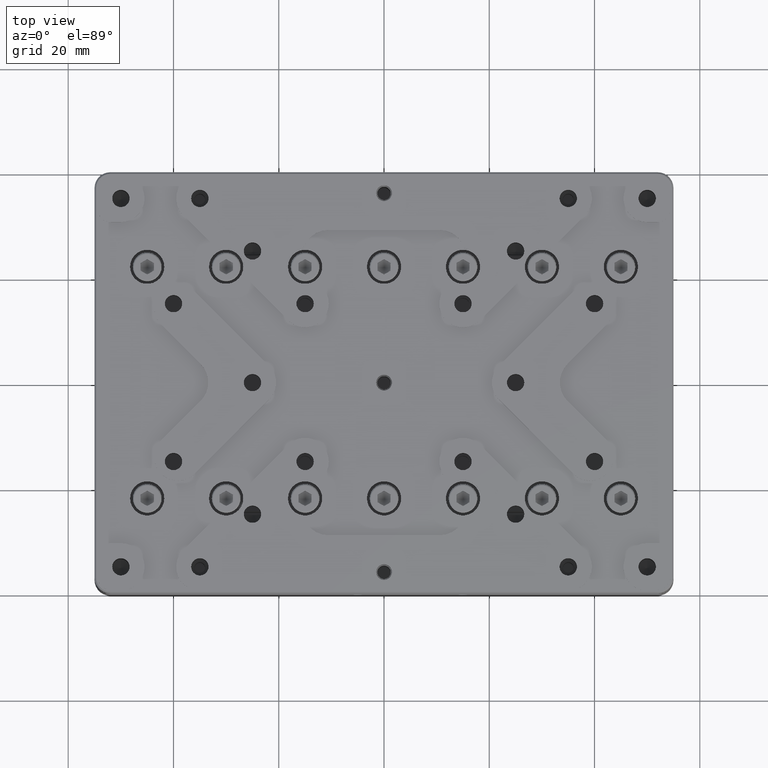
[diagram: clean part render]
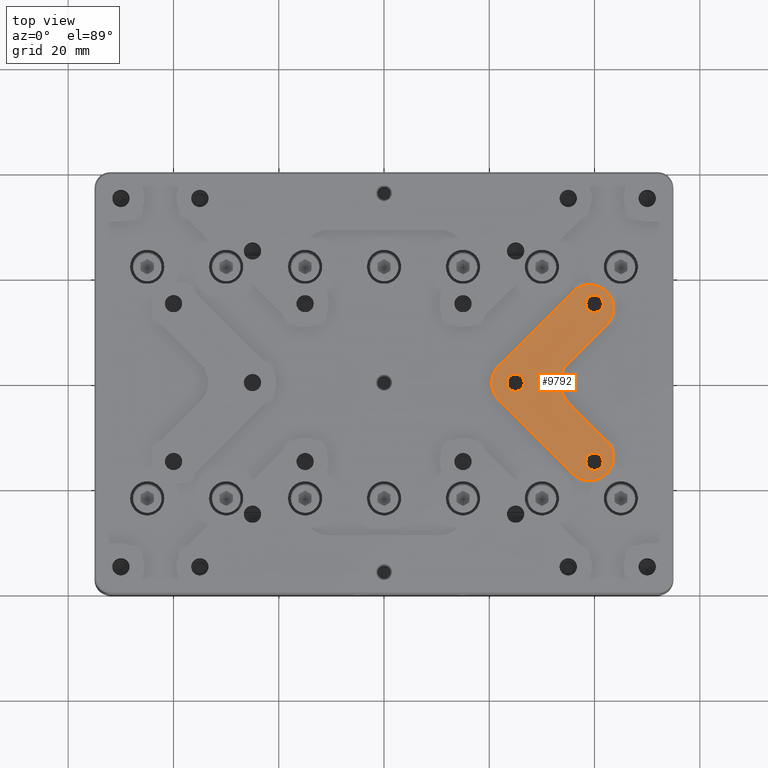
[diagram: same view with one face highlighted and labeled with its STEP entity id]
A machine part, top view. The second image highlights one B-rep face of the part: STEP entity #9792.
In plain terms, the highlighted planar face has unit normal (0, 0, 1).
Its self-contained STEP definition (entity closure, byte-faithful):
#35 = EDGE_CURVE ( 'NONE', #23738, #1265, #7230, .T. ) ;
#52 = CARTESIAN_POINT ( 'NONE',  ( 35.96015510839049512, 17.32411613906949910, 13.50000000000000000 ) ) ;
#178 = DIRECTION ( 'NONE',  ( 1.000000000000000000, 0.000000000000000000, 0.000000000000000000 ) ) ;
#354 = DIRECTION ( 'NONE',  ( 0.000000000000000000, 0.000000000000000000, -1.000000000000000000 ) ) ;
#681 = EDGE_LOOP ( 'NONE', ( #29974, #21616 ) ) ;
#964 = EDGE_CURVE ( 'NONE', #21210, #28801, #24968, .T. ) ;
#1265 = VERTEX_POINT ( 'NONE', #18633 ) ;
#1426 = EDGE_CURVE ( 'NONE', #16082, #28345, #26694, .T. ) ;
#1484 = EDGE_CURVE ( 'NONE', #28801, #21210, #6106, .T. ) ;
#1719 = DIRECTION ( 'NONE',  ( -0.7071067811865474617, -0.7071067811865474617, 0.000000000000000000 ) ) ;
#2872 = ORIENTED_EDGE ( 'NONE', *, *, #1426, .T. ) ;
#3244 = AXIS2_PLACEMENT_3D ( 'NONE', #19556, #13832, #33157 ) ;
#3541 = DIRECTION ( 'NONE',  ( 0.000000000000000000, 0.000000000000000000, -1.000000000000000000 ) ) ;
#3827 = AXIS2_PLACEMENT_3D ( 'NONE', #21850, #22024, #8430 ) ;
#3980 = FACE_BOUND ( 'NONE', #681, .T. ) ;
#4038 = AXIS2_PLACEMENT_3D ( 'NONE', #20217, #15209, #28634 ) ;
#4072 = ORIENTED_EDGE ( 'NONE', *, *, #23164, .T. ) ;
#4694 = EDGE_LOOP ( 'NONE', ( #4072, #25571, #15355, #23477, #16129, #28749, #34299, #19104, #27553, #15709 ) ) ;
#4703 = VERTEX_POINT ( 'NONE', #11216 ) ;
#5354 = CARTESIAN_POINT ( 'NONE',  ( 39.14213562372999888, 14.14213562373000066, 13.50000000000000000 ) ) ;
#5453 = DIRECTION ( 'NONE',  ( 0.000000000000000000, 0.000000000000000000, -1.000000000000000000 ) ) ;
#5870 = EDGE_CURVE ( 'NONE', #16551, #18894, #27631, .T. ) ;
#6007 = LINE ( 'NONE', #8518, #14998 ) ;
#6106 = CIRCLE ( 'NONE', #3827, 1.649999999999998579 ) ;
#6534 = CARTESIAN_POINT ( 'NONE',  ( 35.96015510838999774, -17.32411613907000358, 13.50000000000000000 ) ) ;
#6591 = VECTOR ( 'NONE', #17638, 1000.000000000000114 ) ;
#7230 = CIRCLE ( 'NONE', #3244, 4.499999999999997335 ) ;
#8215 = EDGE_CURVE ( 'NONE', #1265, #15402, #30546, .T. ) ;
#8430 = DIRECTION ( 'NONE',  ( 1.000000000000000000, 0.000000000000000000, 0.000000000000000000 ) ) ;
#8518 = CARTESIAN_POINT ( 'NONE',  ( 34.87722246494999467, -3.513261434267000105, 13.50000000000000000 ) ) ;
#8626 = DIRECTION ( 'NONE',  ( 0.000000000000000000, 0.000000000000000000, -1.000000000000000000 ) ) ;
#8822 = FACE_OUTER_BOUND ( 'NONE', #4694, .T. ) ;
#9027 = DIRECTION ( 'NONE',  ( 1.000000000000000000, -1.776058683802817937E-15, 0.000000000000000000 ) ) ;
#9067 = CARTESIAN_POINT ( 'NONE',  ( 23.34999999999999787, 2.020667218593134974E-16, 13.50000000000000000 ) ) ;
#9341 = EDGE_CURVE ( 'NONE', #4703, #15402, #11724, .T. ) ;
#9666 = VERTEX_POINT ( 'NONE', #52 ) ;
#9678 = CARTESIAN_POINT ( 'NONE',  ( 34.87722246494934808, -3.513261434266369942, 13.50000000000000000 ) ) ;
#9792 = ADVANCED_FACE ( 'NONE', ( #8822, #22946, #3980, #11514 ), #33871, .T. ) ;
#10596 = DIRECTION ( 'NONE',  ( 1.000000000000000000, 0.000000000000000000, 0.000000000000000000 ) ) ;
#10906 = DIRECTION ( 'NONE',  ( 0.000000000000000000, 0.000000000000000000, -1.000000000000000000 ) ) ;
#11152 = DIRECTION ( 'NONE',  ( 0.000000000000000000, 0.000000000000000000, -1.000000000000000000 ) ) ;
#11216 = CARTESIAN_POINT ( 'NONE',  ( 21.81801948465999885, -3.181980515339480231, 13.50000000000000000 ) ) ;
#11514 = FACE_BOUND ( 'NONE', #30041, .T. ) ;
#11526 = VECTOR ( 'NONE', #30781, 1000.000000000000114 ) ;
#11724 = LINE ( 'NONE', #6534, #6591 ) ;
#12267 = CARTESIAN_POINT ( 'NONE',  ( 26.64999999999999858, 0.000000000000000000, 13.50000000000000000 ) ) ;
#12821 = DIRECTION ( 'NONE',  ( 1.000000000000000000, 0.000000000000000000, 0.000000000000000000 ) ) ;
#13196 = AXIS2_PLACEMENT_3D ( 'NONE', #13344, #5453, #12821 ) ;
#13344 = CARTESIAN_POINT ( 'NONE',  ( 40.00000000000000000, 15.00000000000000000, 13.50000000000000000 ) ) ;
#13691 = DIRECTION ( 'NONE',  ( 0.000000000000000000, 0.000000000000000000, -1.000000000000000000 ) ) ;
#13775 = AXIS2_PLACEMENT_3D ( 'NONE', #14230, #25153, #9027 ) ;
#13832 = DIRECTION ( 'NONE',  ( 0.000000000000000000, 0.000000000000000000, -1.000000000000000000 ) ) ;
#14230 = CARTESIAN_POINT ( 'NONE',  ( 38.41275637088000394, 0.02227247166553000118, 13.50000000000000000 ) ) ;
#14252 = EDGE_CURVE ( 'NONE', #9666, #16551, #32634, .T. ) ;
#14736 = CARTESIAN_POINT ( 'NONE',  ( 38.35000000000000142, -15.00000000000000000, 13.50000000000000000 ) ) ;
#14758 = AXIS2_PLACEMENT_3D ( 'NONE', #24345, #30545, #15157 ) ;
#14927 = EDGE_LOOP ( 'NONE', ( #28672, #26589 ) ) ;
#14998 = VECTOR ( 'NONE', #22114, 1000.000000000000114 ) ;
#15157 = DIRECTION ( 'NONE',  ( 1.000000000000000000, 0.000000000000000000, 0.000000000000000000 ) ) ;
#15190 = CARTESIAN_POINT ( 'NONE',  ( 34.87722246494565326, 3.557806377601129721, 13.50000000000000000 ) ) ;
#15209 = DIRECTION ( 'NONE',  ( 0.000000000000000000, 0.000000000000000000, -1.000000000000000000 ) ) ;
#15355 = ORIENTED_EDGE ( 'NONE', *, *, #9341, .T. ) ;
#15402 = VERTEX_POINT ( 'NONE', #29013 ) ;
#15709 = ORIENTED_EDGE ( 'NONE', *, *, #14252, .F. ) ;
#15714 = VERTEX_POINT ( 'NONE', #15190 ) ;
#15810 = CARTESIAN_POINT ( 'NONE',  ( 42.67766952967570404, 11.35825344233570000, 13.50000000000000000 ) ) ;
#16082 = VERTEX_POINT ( 'NONE', #9067 ) ;
#16129 = ORIENTED_EDGE ( 'NONE', *, *, #35, .F. ) ;
#16253 = EDGE_CURVE ( 'NONE', #28345, #16082, #24354, .T. ) ;
#16551 = VERTEX_POINT ( 'NONE', #34075 ) ;
#16864 = VERTEX_POINT ( 'NONE', #9678 ) ;
#17237 = DIRECTION ( 'NONE',  ( 0.000000000000000000, 0.000000000000000000, 1.000000000000000000 ) ) ;
#17254 = VECTOR ( 'NONE', #1719, 1000.000000000000114 ) ;
#17638 = DIRECTION ( 'NONE',  ( 0.7071067811865474617, -0.7071067811865474617, 0.000000000000000000 ) ) ;
#17722 = CARTESIAN_POINT ( 'NONE',  ( 42.67766952966000105, 11.35825344232000056, 13.50000000000000000 ) ) ;
#18027 = LINE ( 'NONE', #21058, #17254 ) ;
#18203 = EDGE_CURVE ( 'NONE', #21305, #21343, #21592, .T. ) ;
#18633 = CARTESIAN_POINT ( 'NONE',  ( 43.64213562372999888, -14.14213562373000066, 13.50000000000000000 ) ) ;
#18693 = AXIS2_PLACEMENT_3D ( 'NONE', #24895, #354, #178 ) ;
#18894 = VERTEX_POINT ( 'NONE', #15810 ) ;
#18926 = VERTEX_POINT ( 'NONE', #35312 ) ;
#19104 = ORIENTED_EDGE ( 'NONE', *, *, #24504, .T. ) ;
#19390 = DIRECTION ( 'NONE',  ( 1.000000000000000000, 0.000000000000000000, 0.000000000000000000 ) ) ;
#19476 = CIRCLE ( 'NONE', #13196, 1.649999999999998579 ) ;
#19506 = AXIS2_PLACEMENT_3D ( 'NONE', #5354, #10906, #21822 ) ;
#19556 = CARTESIAN_POINT ( 'NONE',  ( 39.14213562372999888, -14.14213562373000066, 13.50000000000000000 ) ) ;
#19742 = DIRECTION ( 'NONE',  ( 1.000000000000000000, 0.000000000000000000, 0.000000000000000000 ) ) ;
#20028 = CARTESIAN_POINT ( 'NONE',  ( 38.35000000000000142, 15.00000000000000000, 13.50000000000000000 ) ) ;
#20217 = CARTESIAN_POINT ( 'NONE',  ( 25.00000000000000000, 0.000000000000000000, 13.50000000000000000 ) ) ;
#20847 = AXIS2_PLACEMENT_3D ( 'NONE', #24737, #8626, #10596 ) ;
#21058 = CARTESIAN_POINT ( 'NONE',  ( 21.81801948465999885, 3.181980515339000171, 13.50000000000000000 ) ) ;
#21210 = VERTEX_POINT ( 'NONE', #23991 ) ;
#21305 = VERTEX_POINT ( 'NONE', #30941 ) ;
#21331 = AXIS2_PLACEMENT_3D ( 'NONE', #26097, #3541, #25381 ) ;
#21343 = VERTEX_POINT ( 'NONE', #20028 ) ;
#21489 = AXIS2_PLACEMENT_3D ( 'NONE', #24072, #13691, #27116 ) ;
#21526 = CARTESIAN_POINT ( 'NONE',  ( 42.32411613907049741, -10.96015510838951990, 13.50000000000000000 ) ) ;
#21592 = CIRCLE ( 'NONE', #14758, 1.649999999999998579 ) ;
#21616 = ORIENTED_EDGE ( 'NONE', *, *, #1484, .T. ) ;
#21822 = DIRECTION ( 'NONE',  ( 1.000000000000000000, 0.000000000000000000, 0.000000000000000000 ) ) ;
#21850 = CARTESIAN_POINT ( 'NONE',  ( 40.00000000000000000, -15.00000000000000000, 13.50000000000000000 ) ) ;
#21991 = EDGE_CURVE ( 'NONE', #21343, #21305, #19476, .T. ) ;
#22024 = DIRECTION ( 'NONE',  ( 0.000000000000000000, 0.000000000000000000, -1.000000000000000000 ) ) ;
#22114 = DIRECTION ( 'NONE',  ( -0.7071067811865474617, 0.7071067811865474617, 0.000000000000000000 ) ) ;
#22117 = EDGE_CURVE ( 'NONE', #16864, #15714, #32630, .T. ) ;
#22255 = CARTESIAN_POINT ( 'NONE',  ( 40.00000000000000000, -15.00000000000000000, 13.50000000000000000 ) ) ;
#22946 = FACE_BOUND ( 'NONE', #14927, .T. ) ;
#23164 = EDGE_CURVE ( 'NONE', #9666, #18926, #18027, .T. ) ;
#23477 = ORIENTED_EDGE ( 'NONE', *, *, #8215, .F. ) ;
#23738 = VERTEX_POINT ( 'NONE', #21526 ) ;
#23991 = CARTESIAN_POINT ( 'NONE',  ( 41.64999999999999858, -15.00000000000000000, 13.50000000000000000 ) ) ;
#24072 = CARTESIAN_POINT ( 'NONE',  ( 25.00000000000000000, 0.000000000000000000, 13.50000000000000000 ) ) ;
#24345 = CARTESIAN_POINT ( 'NONE',  ( 40.00000000000000000, 15.00000000000000000, 13.50000000000000000 ) ) ;
#24354 = CIRCLE ( 'NONE', #21489, 1.649999999999998579 ) ;
#24504 = EDGE_CURVE ( 'NONE', #15714, #18894, #34001, .T. ) ;
#24737 = CARTESIAN_POINT ( 'NONE',  ( 39.14213562372999888, -14.14213562373000066, 13.50000000000000000 ) ) ;
#24780 = EDGE_CURVE ( 'NONE', #23738, #16864, #6007, .T. ) ;
#24895 = CARTESIAN_POINT ( 'NONE',  ( 25.00000000000000000, 0.000000000000000000, 13.50000000000000000 ) ) ;
#24968 = CIRCLE ( 'NONE', #30166, 1.649999999999998579 ) ;
#25153 = DIRECTION ( 'NONE',  ( 0.000000000000000000, 0.000000000000000000, -1.000000000000000000 ) ) ;
#25381 = DIRECTION ( 'NONE',  ( 1.000000000000000000, 0.000000000000000000, 0.000000000000000000 ) ) ;
#25571 = ORIENTED_EDGE ( 'NONE', *, *, #26294, .F. ) ;
#25758 = CIRCLE ( 'NONE', #4038, 4.500000000000000888 ) ;
#26097 = CARTESIAN_POINT ( 'NONE',  ( 39.14213562372999888, 14.14213562373000066, 13.50000000000000000 ) ) ;
#26294 = EDGE_CURVE ( 'NONE', #4703, #18926, #25758, .T. ) ;
#26589 = ORIENTED_EDGE ( 'NONE', *, *, #21991, .T. ) ;
#26694 = CIRCLE ( 'NONE', #18693, 1.649999999999998579 ) ;
#27116 = DIRECTION ( 'NONE',  ( 1.000000000000000000, 0.000000000000000000, 0.000000000000000000 ) ) ;
#27553 = ORIENTED_EDGE ( 'NONE', *, *, #5870, .F. ) ;
#27631 = CIRCLE ( 'NONE', #21331, 4.499999999999997335 ) ;
#28154 = CARTESIAN_POINT ( 'NONE',  ( -55.00000000000000000, 40.00000000000000000, 13.50000000000000000 ) ) ;
#28345 = VERTEX_POINT ( 'NONE', #12267 ) ;
#28634 = DIRECTION ( 'NONE',  ( 1.000000000000000000, 1.776356839400249676E-15, 0.000000000000000000 ) ) ;
#28672 = ORIENTED_EDGE ( 'NONE', *, *, #18203, .T. ) ;
#28749 = ORIENTED_EDGE ( 'NONE', *, *, #24780, .T. ) ;
#28801 = VERTEX_POINT ( 'NONE', #14736 ) ;
#29013 = CARTESIAN_POINT ( 'NONE',  ( 35.96015510838999774, -17.32411613907000358, 13.50000000000000000 ) ) ;
#29974 = ORIENTED_EDGE ( 'NONE', *, *, #964, .T. ) ;
#30041 = EDGE_LOOP ( 'NONE', ( #30905, #2872 ) ) ;
#30166 = AXIS2_PLACEMENT_3D ( 'NONE', #22255, #11152, #19390 ) ;
#30545 = DIRECTION ( 'NONE',  ( 0.000000000000000000, 0.000000000000000000, -1.000000000000000000 ) ) ;
#30546 = CIRCLE ( 'NONE', #20847, 4.499999999999997335 ) ;
#30781 = DIRECTION ( 'NONE',  ( 0.7071067811865474617, 0.7071067811865474617, 0.000000000000000000 ) ) ;
#30905 = ORIENTED_EDGE ( 'NONE', *, *, #16253, .T. ) ;
#30941 = CARTESIAN_POINT ( 'NONE',  ( 41.64999999999999858, 15.00000000000000000, 13.50000000000000000 ) ) ;
#32361 = AXIS2_PLACEMENT_3D ( 'NONE', #28154, #17237, #19742 ) ;
#32630 = CIRCLE ( 'NONE', #13775, 4.999999999999997335 ) ;
#32634 = CIRCLE ( 'NONE', #19506, 4.499999999999997335 ) ;
#33157 = DIRECTION ( 'NONE',  ( 1.000000000000000000, 1.927470528863120133E-15, 0.000000000000000000 ) ) ;
#33871 = PLANE ( 'NONE',  #32361 ) ;
#34001 = LINE ( 'NONE', #17722, #11526 ) ;
#34075 = CARTESIAN_POINT ( 'NONE',  ( 43.64213562372999888, 14.14213562373000066, 13.50000000000000000 ) ) ;
#34299 = ORIENTED_EDGE ( 'NONE', *, *, #22117, .T. ) ;
#35312 = CARTESIAN_POINT ( 'NONE',  ( 21.81801948466025109, 3.181980515339235094, 13.50000000000000000 ) ) ;